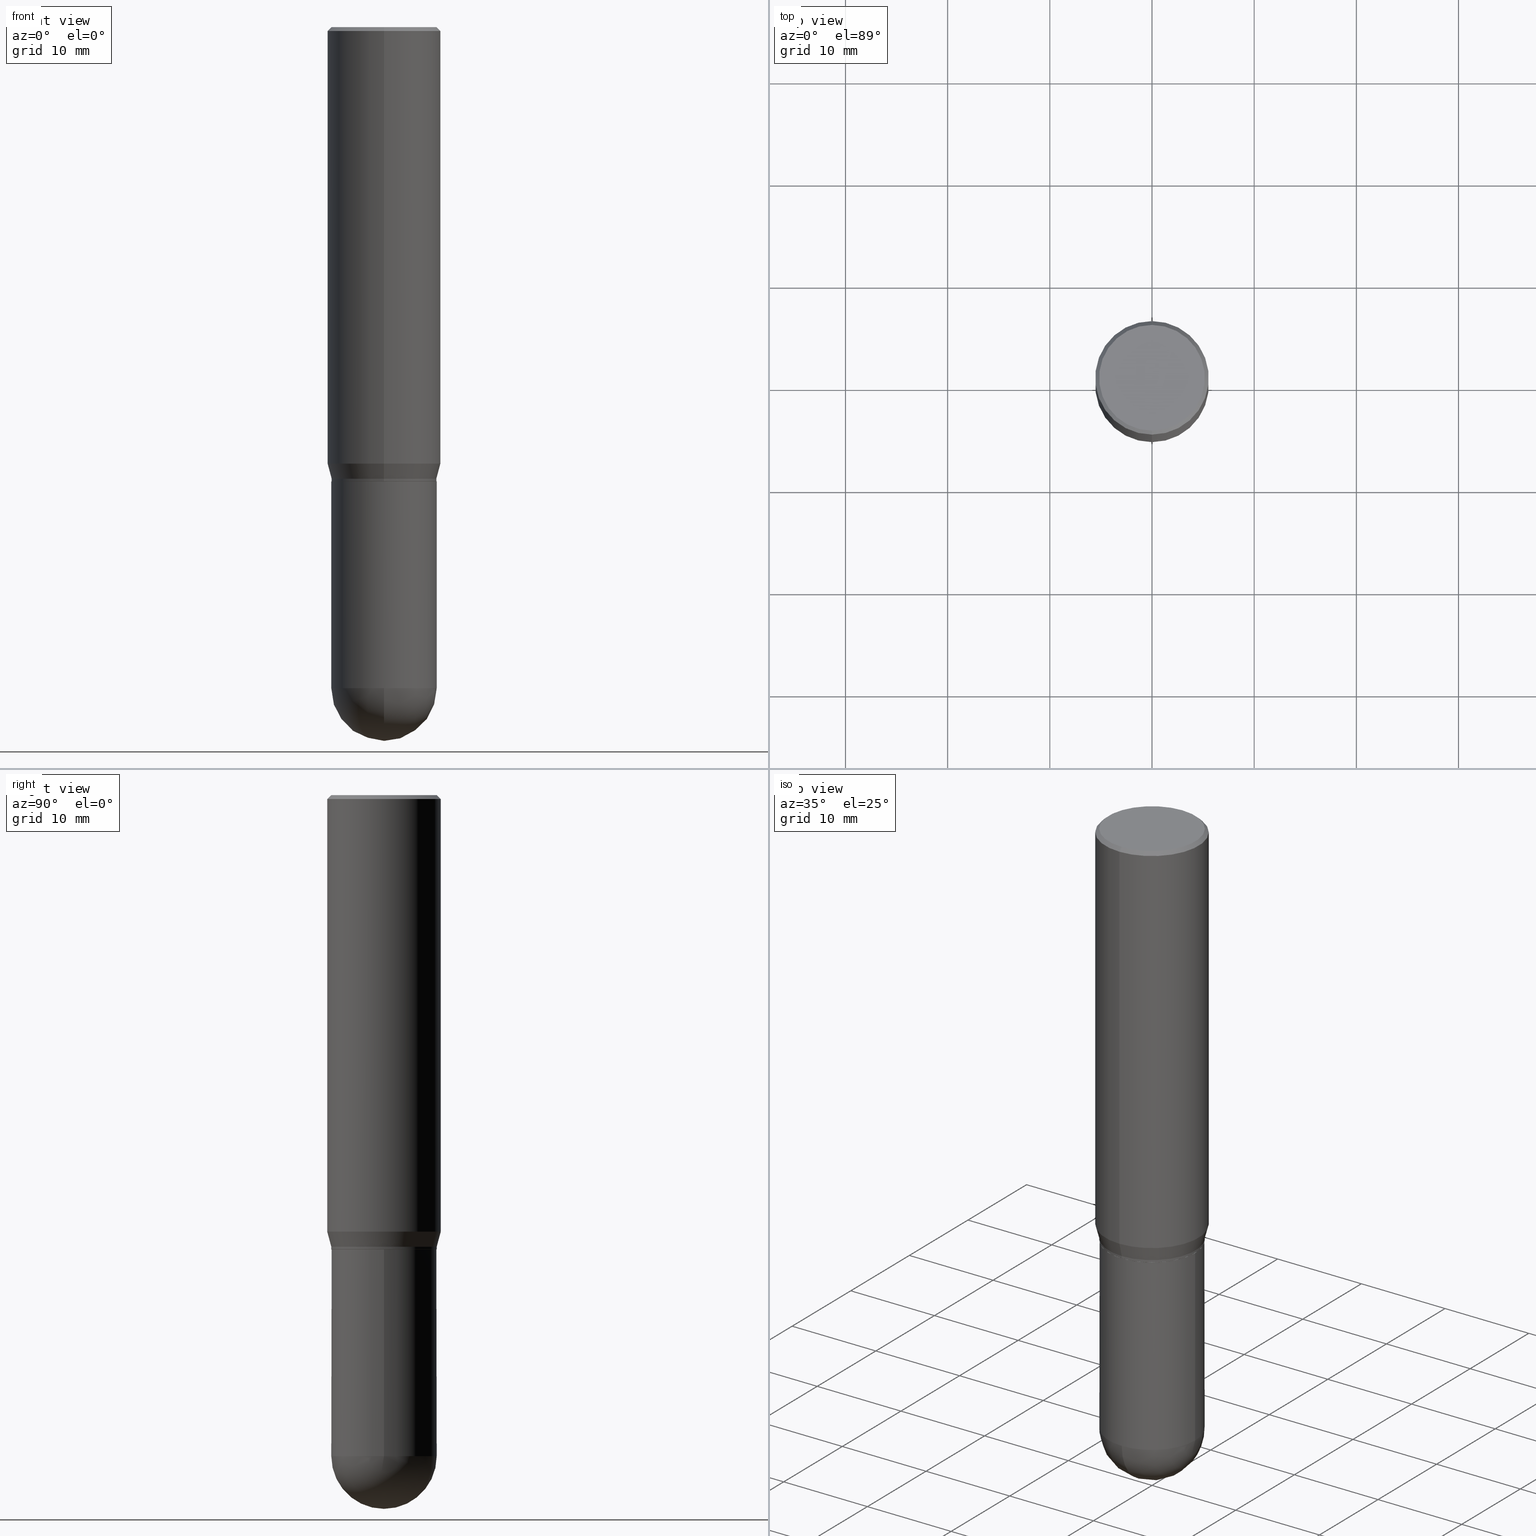
[diagram: canonical four-view strip — front | top / right | iso, engineering-drawing reading convention]
A machine part, canonical four-view strip (front | top / right | iso — engineering-drawing reading convention). The complete STEP part file that produces these views, byte-faithful:
ISO-10303-21;
HEADER;
FILE_DESCRIPTION (( 'STEP AP203' ),
    '1' );
FILE_NAME ('30152.STEP',
    '2024-03-08T15:19:34',
    ( '' ),
    ( '' ),
    'SwSTEP 2.0',
    'SolidWorks 2023',
    '' );
FILE_SCHEMA (( 'CONFIG_CONTROL_DESIGN' ));
ENDSEC;

DATA;
#1 = DIRECTION ( 'NONE',  ( -2.445434585093504913E-29, 3.491530345394105536E-15, 1.000000000000000000 ) ) ;
#2 = DIRECTION ( 'NONE',  ( -6.982962677686265133E-15, -1.000000000000000000, 3.746534391310989557E-15 ) ) ;
#3 = CARTESIAN_POINT ( 'NONE',  ( 0.000000000000000000, 0.000000000000000000, 0.000000000000000000 ) ) ;
#4 = ADVANCED_FACE ( 'NONE', ( #391 ), #68, .F. ) ;
#5 = LINE ( 'NONE', #230, #276 ) ;
#6 = ORIENTED_EDGE ( 'NONE', *, *, #330, .T. ) ;
#7 = EDGE_CURVE ( 'NONE', #196, #449, #484, .T. ) ;
#8 = MANIFOLD_SOLID_BREP ( 'Body-Move/Copy2[1]', #362 ) ;
#9 = ORIENTED_EDGE ( 'NONE', *, *, #167, .F. ) ;
#10 = PERSON_AND_ORGANIZATION_ROLE ( 'creator' ) ;
#11 = CIRCLE ( 'NONE', #315, 0.2031000000000000583 ) ;
#12 = APPROVAL_STATUS ( 'not_yet_approved' ) ;
#13 = ORIENTED_EDGE ( 'NONE', *, *, #423, .F. ) ;
#14 = APPROVAL_DATE_TIME ( #46, #122 ) ;
#15 = ORIENTED_EDGE ( 'NONE', *, *, #454, .F. ) ;
#16 = AXIS2_PLACEMENT_3D ( 'NONE', #419, #59, #169 ) ;
#17 = DIRECTION ( 'NONE',  ( 1.000000000000000000, -6.982962677686262766E-15, 0.000000000000000000 ) ) ;
#18 = EDGE_LOOP ( 'NONE', ( #442, #325 ) ) ;
#19 = ORIENTED_EDGE ( 'NONE', *, *, #287, .F. ) ;
#20 = CYLINDRICAL_SURFACE ( 'NONE', #404, 0.2187500000000000000 ) ;
#21 = FACE_OUTER_BOUND ( 'NONE', #87, .T. ) ;
#22 = CARTESIAN_POINT ( 'NONE',  ( 6.228364502472924746E-29, -8.892453821899607499E-15, -2.546899999999999942 ) ) ;
#23 = CIRCLE ( 'NONE', #270, 0.2030999999999999472 ) ;
#24 = CALENDAR_DATE ( 2024, 8, 3 ) ;
#25 = DIRECTION ( 'NONE',  ( 1.000000000000000000, -6.982962677686262766E-15, 0.000000000000000000 ) ) ;
#26 = DIRECTION ( 'NONE',  ( -6.982962677686265133E-15, -1.000000000000000000, 3.491530345394105141E-15 ) ) ;
#27 = DIRECTION ( 'NONE',  ( 2.445434585093504913E-29, -3.491530345394105536E-15, -1.000000000000000000 ) ) ;
#28 = EDGE_CURVE ( 'NONE', #247, #130, #217, .T. ) ;
#29 = FACE_OUTER_BOUND ( 'NONE', #61, .T. ) ;
#30 = FACE_OUTER_BOUND ( 'NONE', #79, .T. ) ;
#31 = SECURITY_CLASSIFICATION ( '', '', #95 ) ;
#32 = DIRECTION ( 'NONE',  ( 6.982962677686265922E-15, 1.000000000000000000, -3.491530345394105536E-15 ) ) ;
#33 = PRODUCT ( '30152', '30152', '', ( #285 ) ) ;
#34 = DIRECTION ( 'NONE',  ( -2.445434585093504913E-29, 3.491530345394105536E-15, 1.000000000000000000 ) ) ;
#35 = CC_DESIGN_PERSON_AND_ORGANIZATION_ASSIGNMENT ( #86, #10, ( #211 ) ) ;
#36 = CARTESIAN_POINT ( 'NONE',  ( 3.668151877640314350E-31, -5.237295518091239778E-17, -0.01500000000000023190 ) ) ;
#37 = FACE_OUTER_BOUND ( 'NONE', #380, .T. ) ;
#38 = VECTOR ( 'NONE', #476, 39.37007874015748143 ) ;
#39 = CIRCLE ( 'NONE', #53, 0.2187500000000000000 ) ;
#40 = CALENDAR_DATE ( 2024, 8, 3 ) ;
#41 = EDGE_LOOP ( 'NONE', ( #232, #134, #368, #370, #19 ) ) ;
#42 = ORIENTED_EDGE ( 'NONE', *, *, #205, .F. ) ;
#43 = CIRCLE ( 'NONE', #353, 0.2030999999999999472 ) ;
#44 = CIRCLE ( 'NONE', #345, 0.2026000000000000023 ) ;
#45 =( GEOMETRIC_REPRESENTATION_CONTEXT ( 3 ) GLOBAL_UNCERTAINTY_ASSIGNED_CONTEXT ( ( #117 ) ) GLOBAL_UNIT_ASSIGNED_CONTEXT ( ( #243, #487, #398 ) ) REPRESENTATION_CONTEXT ( 'NONE', 'WORKASPACE' ) );
#46 = DATE_AND_TIME ( #279, #417 ) ;
#47 = CC_DESIGN_PERSON_AND_ORGANIZATION_ASSIGNMENT ( #48, #458, ( #184 ) ) ;
#48 = PERSON_AND_ORGANIZATION ( #439, #303 ) ;
#49 = VERTEX_POINT ( 'NONE', #236 ) ;
#50 = DIRECTION ( 'NONE',  ( -2.445434585093504633E-29, 3.491530345394105536E-15, 1.000000000000000000 ) ) ;
#51 = AXIS2_PLACEMENT_3D ( 'NONE', #327, #286, #292 ) ;
#52 = AXIS2_PLACEMENT_3D ( 'NONE', #272, #65, #66 ) ;
#53 = AXIS2_PLACEMENT_3D ( 'NONE', #231, #128, #448 ) ;
#54 = DIRECTION ( 'NONE',  ( -2.445468806185136597E-29, 3.491481338843145583E-15, 1.000000000000000000 ) ) ;
#55 = ORIENTED_EDGE ( 'NONE', *, *, #278, .F. ) ;
#56 = VERTEX_POINT ( 'NONE', #324 ) ;
#57 = ADVANCED_FACE ( 'NONE', ( #333 ), #396, .T. ) ;
#58 = EDGE_CURVE ( 'NONE', #478, #347, #43, .T. ) ;
#59 = DIRECTION ( 'NONE',  ( -2.445434585093504913E-29, 3.491530345394105536E-15, 1.000000000000000000 ) ) ;
#60 = FACE_OUTER_BOUND ( 'NONE', #248, .T. ) ;
#61 = EDGE_LOOP ( 'NONE', ( #334, #498, #157, #85 ) ) ;
#62 = APPLICATION_CONTEXT ( 'configuration controlled 3d designs of mechanical parts and assemblies' ) ;
#63 = LOCAL_TIME ( 10, 19, 34.00000000000000000, #119 ) ;
#64 = CARTESIAN_POINT ( 'NONE',  ( 0.000000000000000000, 0.000000000000000000, 0.000000000000000000 ) ) ;
#65 = DIRECTION ( 'NONE',  ( -2.445434585093504913E-29, 3.491530345394105536E-15, 1.000000000000000000 ) ) ;
#66 = DIRECTION ( 'NONE',  ( -6.982962677686266711E-15, -1.000000000000000000, 4.035225987687243463E-15 ) ) ;
#67 = ADVANCED_FACE ( 'NONE', ( #21 ), #424, .T. ) ;
#68 = PLANE ( 'NONE',  #268 ) ;
#69 = VECTOR ( 'NONE', #271, 39.37007874015748854 ) ;
#70 = LINE ( 'NONE', #470, #511 ) ;
#71 = CARTESIAN_POINT ( 'NONE',  ( -1.414748238499194972E-15, -0.2026000000000061363, -1.749999999999999112 ) ) ;
#72 = EDGE_CURVE ( 'NONE', #298, #447, #126, .T. ) ;
#73 = CARTESIAN_POINT ( 'NONE',  ( -1.418239719838037782E-15, -0.2031000000000060257, -1.739999999999999103 ) ) ;
#74 = EDGE_LOOP ( 'NONE', ( #365, #340, #486, #414 ) ) ;
#75 = CARTESIAN_POINT ( 'NONE',  ( -1.414748238499194972E-15, -0.2026000000000061363, -1.749999999999999112 ) ) ;
#76 = DATE_AND_TIME ( #323, #309 ) ;
#77 = VECTOR ( 'NONE', #223, 39.37007874015748143 ) ;
#78 = VERTEX_POINT ( 'NONE', #162 ) ;
#79 = EDGE_LOOP ( 'NONE', ( #244, #197 ) ) ;
#80 = APPLICATION_PROTOCOL_DEFINITION ( 'international standard', 'config_control_design', 1994, #393 ) ;
#81 = DIRECTION ( 'NONE',  ( -2.445468806185136597E-29, 3.491481338843145583E-15, 1.000000000000000000 ) ) ;
#82 = EDGE_LOOP ( 'NONE', ( #289, #495 ) ) ;
#83 = APPLICATION_PROTOCOL_DEFINITION ( 'international standard', 'config_control_design', 1994, #62 ) ;
#84 = CIRCLE ( 'NONE', #16, 0.2030999999999999472 ) ;
#85 = ORIENTED_EDGE ( 'NONE', *, *, #235, .F. ) ;
#86 = PERSON_AND_ORGANIZATION ( #439, #303 ) ;
#87 = EDGE_LOOP ( 'NONE', ( #92, #411, #477, #294 ) ) ;
#88 = ORIENTED_EDGE ( 'NONE', *, *, #205, .T. ) ;
#89 = ORIENTED_EDGE ( 'NONE', *, *, #140, .F. ) ;
#90 = DATE_TIME_ROLE ( 'classification_date' ) ;
#91 = DIRECTION ( 'NONE',  ( -2.445468806185136597E-29, 3.491481338843145583E-15, 1.000000000000000000 ) ) ;
#92 = ORIENTED_EDGE ( 'NONE', *, *, #203, .T. ) ;
#93 = DIRECTION ( 'NONE',  ( -6.982962677686266711E-15, -1.000000000000000000, 4.035225987687243463E-15 ) ) ;
#94 = CARTESIAN_POINT ( 'NONE',  ( 4.255056178062698487E-29, -6.075262800985744342E-15, -1.739999999999999991 ) ) ;
#95 = SECURITY_CLASSIFICATION_LEVEL ( 'unclassified' ) ;
#96 = DIRECTION ( 'NONE',  ( 2.438088387897960049E-29, -3.491481338843145188E-15, -1.000000000000000000 ) ) ;
#97 = ORIENTED_EDGE ( 'NONE', *, *, #263, .T. ) ;
#98 = EDGE_CURVE ( 'NONE', #481, #298, #267, .T. ) ;
#99 = CARTESIAN_POINT ( 'NONE',  ( -1.418239719838036796E-15, -0.2031000000000059424, -1.749499999999999167 ) ) ;
#100 = DATE_AND_TIME ( #455, #190 ) ;
#101 = DIRECTION ( 'NONE',  ( -2.445468806185136597E-29, 3.491481338843145583E-15, 1.000000000000000000 ) ) ;
#102 = APPROVAL ( #207, 'UNSPECIFIED' ) ;
#103 = CIRCLE ( 'NONE', #146, 0.2037499999999999867 ) ;
#104 = CC_DESIGN_APPROVAL ( #102, ( #31 ) ) ;
#105 = FACE_OUTER_BOUND ( 'NONE', #41, .T. ) ;
#106 = FACE_OUTER_BOUND ( 'NONE', #406, .T. ) ;
#107 = DIRECTION ( 'NONE',  ( 6.982962677686265133E-15, 1.000000000000000000, -3.492862791899308071E-15 ) ) ;
#108 = CARTESIAN_POINT ( 'NONE',  ( 1.422778645578576487E-15, 0.2037499999999999867, -8.279976413721720471E-16 ) ) ;
#109 = AXIS2_PLACEMENT_3D ( 'NONE', #304, #96, #208 ) ;
#110 = LINE ( 'NONE', #265, #38 ) ;
#111 = CARTESIAN_POINT ( 'NONE',  ( 6.228364502472924746E-29, -8.892453821899607499E-15, -2.546899999999999942 ) ) ;
#112 = SPHERICAL_SURFACE ( 'NONE', #222, 0.2030999999999999472 ) ;
#113 = DIRECTION ( 'NONE',  ( -2.445434585093504913E-29, 3.491530345394105536E-15, 1.000000000000000000 ) ) ;
#114 = ORIENTED_EDGE ( 'NONE', *, *, #332, .F. ) ;
#115 = CIRCLE ( 'NONE', #416, 0.2026000000000000023 ) ;
#116 = CONICAL_SURFACE ( 'NONE', #460, 0.2030999999999999472, 0.2617993877991492413 ) ;
#117 = UNCERTAINTY_MEASURE_WITH_UNIT (LENGTH_MEASURE( 1.000000000000000082E-05 ), #243, 'distance_accuracy_value', 'NONE');
#118 = ORIENTED_EDGE ( 'NONE', *, *, #266, .T. ) ;
#119 = COORDINATED_UNIVERSAL_TIME_OFFSET ( 5, 0, .BEHIND. ) ;
#120 = ORIENTED_EDGE ( 'NONE', *, *, #225, .F. ) ;
#121 = CARTESIAN_POINT ( 'NONE',  ( 1.498712265402032742E-15, 0.2030999999999938688, -1.740000000000000879 ) ) ;
#122 = APPROVAL ( #372, 'UNSPECIFIED' ) ;
#123 = ORIENTED_EDGE ( 'NONE', *, *, #235, .T. ) ;
#124 = ORIENTED_EDGE ( 'NONE', *, *, #312, .F. ) ;
#125 = APPROVAL_DATE_TIME ( #164, #464 ) ;
#126 = LINE ( 'NONE', #488, #249 ) ;
#127 = AXIS2_PLACEMENT_3D ( 'NONE', #165, #258, #379 ) ;
#128 = DIRECTION ( 'NONE',  ( -2.445434585093504913E-29, 3.491530345394105536E-15, 1.000000000000000000 ) ) ;
#129 = ORIENTED_EDGE ( 'NONE', *, *, #366, .T. ) ;
#130 = VERTEX_POINT ( 'NONE', #121 ) ;
#131 = ADVANCED_BREP_SHAPE_REPRESENTATION ( '30152', ( #8, #338, #337 ), #45 ) ;
#132 = CARTESIAN_POINT ( 'NONE',  ( 0.2031000000000000583, -8.919512802275635677E-15, -2.546899999999999942 ) ) ;
#133 = EDGE_LOOP ( 'NONE', ( #277, #209, #139, #429 ) ) ;
#134 = ORIENTED_EDGE ( 'NONE', *, *, #140, .T. ) ;
#135 = DIRECTION ( 'NONE',  ( -2.445434585093504913E-29, 3.491530345394105536E-15, 1.000000000000000000 ) ) ;
#136 = AXIS2_PLACEMENT_3D ( 'NONE', #227, #510, #154 ) ;
#137 = AXIS2_PLACEMENT_3D ( 'NONE', #494, #479, #369 ) ;
#138 = FACE_OUTER_BOUND ( 'NONE', #240, .T. ) ;
#139 = ORIENTED_EDGE ( 'NONE', *, *, #203, .F. ) ;
#140 = EDGE_CURVE ( 'NONE', #56, #493, #437, .T. ) ;
#141 = DATE_AND_TIME ( #24, #322 ) ;
#142 = CARTESIAN_POINT ( 'NONE',  ( 4.279570410823988484E-29, -6.110092342975504671E-15, -1.750000000000000000 ) ) ;
#143 = CC_DESIGN_PERSON_AND_ORGANIZATION_ASSIGNMENT ( #281, #290, ( #184 ) ) ;
#144 = CARTESIAN_POINT ( 'NONE',  ( 4.279510523913633107E-29, -6.110178104439684490E-15, -1.750000000000000000 ) ) ;
#145 = CLOSED_SHELL ( 'NONE', ( #382, #246, #378, #156, #67, #482, #228, #367, #4, #453, #57, #413 ) ) ;
#146 = AXIS2_PLACEMENT_3D ( 'NONE', #387, #253, #26 ) ;
#147 = CARTESIAN_POINT ( 'NONE',  ( -1.500733937012521740E-15, -0.2187500000000000555, -0.01499999999999946862 ) ) ;
#148 = CARTESIAN_POINT ( 'NONE',  ( 4.112226670313570876E-29, -5.871334401688686033E-15, -1.681593404861546848 ) ) ;
#149 = FACE_OUTER_BOUND ( 'NONE', #133, .T. ) ;
#150 = CARTESIAN_POINT ( 'NONE',  ( 0.2031000000000000028, -1.418239719838080775E-15, 9.903515031641546145E-30 ) ) ;
#151 = VECTOR ( 'NONE', #224, 39.37007874015748143 ) ;
#152 = AXIS2_PLACEMENT_3D ( 'NONE', #512, #471, #433 ) ;
#153 = CARTESIAN_POINT ( 'NONE',  ( 6.716355003342508555E-29, -9.614009970063991023E-15, -2.750000000000000000 ) ) ;
#154 = DIRECTION ( 'NONE',  ( -6.982962677686266711E-15, -1.000000000000000000, 3.491530345394105536E-15 ) ) ;
#155 = CARTESIAN_POINT ( 'NONE',  ( -1.443112296328700980E-15, -0.2031000000000088845, -2.546899999999999498 ) ) ;
#156 = ADVANCED_FACE ( 'NONE', ( #29 ), #183, .T. ) ;
#157 = ORIENTED_EDGE ( 'NONE', *, *, #491, .F. ) ;
#158 = PERSON_AND_ORGANIZATION ( #439, #303 ) ;
#159 = CIRCLE ( 'NONE', #363, 0.2030999999999999472 ) ;
#160 = EDGE_CURVE ( 'NONE', #297, #247, #180, .T. ) ;
#161 = CARTESIAN_POINT ( 'NONE',  ( -1.527523085743870054E-15, -0.2187500000000000555, -0.01499999999999946862 ) ) ;
#162 = CARTESIAN_POINT ( 'NONE',  ( -0.2031000000000000028, -6.058160786108792588E-15, -1.750000000000000000 ) ) ;
#163 = ORIENTED_EDGE ( 'NONE', *, *, #366, .F. ) ;
#164 = DATE_AND_TIME ( #40, #63 ) ;
#165 = CARTESIAN_POINT ( 'NONE',  ( 0.000000000000000000, 0.000000000000000000, 0.000000000000000000 ) ) ;
#166 = ORIENTED_EDGE ( 'NONE', *, *, #423, .T. ) ;
#167 = EDGE_CURVE ( 'NONE', #273, #49, #226, .T. ) ;
#168 = PERSON_AND_ORGANIZATION_ROLE ( 'classification_officer' ) ;
#169 = DIRECTION ( 'NONE',  ( -6.982962677686266711E-15, -1.000000000000000000, 4.035225987687243463E-15 ) ) ;
#170 = DIRECTION ( 'NONE',  ( -6.982962677686265133E-15, -1.000000000000000000, 3.491530345394105536E-15 ) ) ;
#171 = VECTOR ( 'NONE', #496, 39.37007874015748143 ) ;
#172 = AXIS2_PLACEMENT_3D ( 'NONE', #144, #135, #346 ) ;
#173 = DIRECTION ( 'NONE',  ( -1.000000000000000000, 6.982962677686266711E-15, -4.883557194083112901E-29 ) ) ;
#174 = CC_DESIGN_APPROVAL ( #122, ( #211 ) ) ;
#175 = DIRECTION ( 'NONE',  ( -2.445434585093504913E-29, 3.491530345394105536E-15, 1.000000000000000000 ) ) ;
#176 = CC_DESIGN_SECURITY_CLASSIFICATION ( #31, ( #184 ) ) ;
#177 = DIRECTION ( 'NONE',  ( -6.982962677686265922E-15, -1.000000000000000000, 4.045184590815789415E-15 ) ) ;
#178 = DIRECTION ( 'NONE',  ( -2.445434585093504913E-29, 3.491530345394105536E-15, 1.000000000000000000 ) ) ;
#179 = PLANE ( 'NONE',  #109 ) ;
#180 = LINE ( 'NONE', #296, #69 ) ;
#181 = DIRECTION ( 'NONE',  ( 1.000000000000000000, -6.982962677686262766E-15, 0.000000000000000000 ) ) ;
#182 = EDGE_CURVE ( 'NONE', #193, #297, #44, .T. ) ;
#183 = CYLINDRICAL_SURFACE ( 'NONE', #468, 0.2187500000000000000 ) ;
#184 = PRODUCT_DEFINITION_FORMATION_WITH_SPECIFIED_SOURCE ( 'ANY', '', #33, .NOT_KNOWN. ) ;
#185 = PLANE ( 'NONE',  #405 ) ;
#186 = DIRECTION ( 'NONE',  ( -4.937700262164715281E-15, -0.7071067811865691111, 0.7071067811865257013 ) ) ;
#187 = ADVANCED_FACE ( 'NONE', ( #218 ), #112, .T. ) ;
#188 = CYLINDRICAL_SURFACE ( 'NONE', #136, 0.2030999999999999472 ) ;
#189 = AXIS2_PLACEMENT_3D ( 'NONE', #36, #27, #352 ) ;
#190 = LOCAL_TIME ( 10, 19, 34.00000000000000000, #412 ) ;
#191 = DIRECTION ( 'NONE',  ( -6.982962677686266711E-15, -1.000000000000000000, 4.035225987687243463E-15 ) ) ;
#192 = CC_DESIGN_DATE_AND_TIME_ASSIGNMENT ( #100, #90, ( #31 ) ) ;
#193 = VERTEX_POINT ( 'NONE', #71 ) ;
#194 = DIRECTION ( 'NONE',  ( 0.000000000000000000, 0.000000000000000000, 1.000000000000000000 ) ) ;
#195 = VECTOR ( 'NONE', #186, 39.37007874015748854 ) ;
#196 = VERTEX_POINT ( 'NONE', #99 ) ;
#197 = ORIENTED_EDGE ( 'NONE', *, *, #266, .F. ) ;
#198 = PERSON_AND_ORGANIZATION ( #439, #303 ) ;
#199 = DIRECTION ( 'NONE',  ( 4.937700262164548831E-15, 0.7071067811865452413, -0.7071067811865497932 ) ) ;
#200 = CARTESIAN_POINT ( 'NONE',  ( 0.000000000000000000, 0.000000000000000000, 0.000000000000000000 ) ) ;
#201 = APPROVAL_ROLE ( '' ) ;
#202 = CARTESIAN_POINT ( 'NONE',  ( 6.210996075139691695E-29, -8.917326398390289827E-15, -2.546899999999999942 ) ) ;
#203 = EDGE_CURVE ( 'NONE', #449, #130, #84, .T. ) ;
#204 = EDGE_LOOP ( 'NONE', ( #213, #237, #42, #55 ) ) ;
#205 = EDGE_CURVE ( 'NONE', #273, #347, #259, .T. ) ;
#206 = AXIS2_PLACEMENT_3D ( 'NONE', #142, #54, #305 ) ;
#207 = APPROVAL_STATUS ( 'not_yet_approved' ) ;
#208 = DIRECTION ( 'NONE',  ( -1.000000000000000000, 6.982962677686265922E-15, -4.876176775795935793E-29 ) ) ;
#209 = ORIENTED_EDGE ( 'NONE', *, *, #28, .T. ) ;
#210 = CARTESIAN_POINT ( 'NONE',  ( 4.279570410823988484E-29, -6.110092342975504671E-15, -1.750000000000000000 ) ) ;
#211 = PRODUCT_DEFINITION ( 'UNKNOWN', '', #184, #485 ) ;
#212 = DIRECTION ( 'NONE',  ( 1.000000000000000000, -6.982962677686269866E-15, 0.000000000000000000 ) ) ;
#213 = ORIENTED_EDGE ( 'NONE', *, *, #263, .F. ) ;
#214 = AXIS2_PLACEMENT_3D ( 'NONE', #220, #360, #2 ) ;
#215 = CIRCLE ( 'NONE', #252, 0.2030999999999999472 ) ;
#216 = DIRECTION ( 'NONE',  ( 6.982962677686266711E-15, 1.000000000000000000, 0.000000000000000000 ) ) ;
#217 = LINE ( 'NONE', #261, #171 ) ;
#218 = FACE_OUTER_BOUND ( 'NONE', #204, .T. ) ;
#219 = CARTESIAN_POINT ( 'NONE',  ( 1.475150865661223764E-15, 0.2037499999999999867, -9.445959748702948399E-16 ) ) ;
#220 = CARTESIAN_POINT ( 'NONE',  ( 4.112226670313570876E-29, -5.871334401688686033E-15, -1.681593404861546848 ) ) ;
#221 = LINE ( 'NONE', #75, #195 ) ;
#222 = AXIS2_PLACEMENT_3D ( 'NONE', #434, #173, #504 ) ;
#223 = DIRECTION ( 'NONE',  ( -2.445468806185136877E-29, 3.491481338843145188E-15, 1.000000000000000000 ) ) ;
#224 = DIRECTION ( 'NONE',  ( -4.851104656540965064E-15, -0.7071067811865501263, -0.7071067811865449082 ) ) ;
#225 = EDGE_CURVE ( 'NONE', #49, #78, #320, .T. ) ;
#226 = LINE ( 'NONE', #150, #77 ) ;
#227 = CARTESIAN_POINT ( 'NONE',  ( 0.000000000000000000, 0.000000000000000000, 0.000000000000000000 ) ) ;
#228 = ADVANCED_FACE ( 'NONE', ( #138 ), #20, .T. ) ;
#229 = ADVANCED_FACE ( 'NONE', ( #421 ), #179, .F. ) ;
#230 = CARTESIAN_POINT ( 'NONE',  ( -1.418239719838037782E-15, -0.2031000000000060257, -1.739999999999999103 ) ) ;
#231 = CARTESIAN_POINT ( 'NONE',  ( 3.668151877640314350E-31, -5.237295518091239778E-17, -0.01500000000000023190 ) ) ;
#232 = ORIENTED_EDGE ( 'NONE', *, *, #310, .F. ) ;
#233 = EDGE_LOOP ( 'NONE', ( #377, #97, #89, #114 ) ) ;
#234 = SPHERICAL_SURFACE ( 'NONE', #137, 0.2030999999999999472 ) ;
#235 = EDGE_CURVE ( 'NONE', #318, #489, #499, .T. ) ;
#236 = CARTESIAN_POINT ( 'NONE',  ( 0.2031000000000000028, -7.528332062813585446E-15, -1.750000000000000000 ) ) ;
#237 = ORIENTED_EDGE ( 'NONE', *, *, #58, .T. ) ;
#238 = FACE_OUTER_BOUND ( 'NONE', #233, .T. ) ;
#239 = DIRECTION ( 'NONE',  ( 1.000000000000000000, -6.982962677686262766E-15, 0.000000000000000000 ) ) ;
#240 = EDGE_LOOP ( 'NONE', ( #385, #129, #123, #15 ) ) ;
#241 = DIRECTION ( 'NONE',  ( -6.982962677686265922E-15, -1.000000000000000000, 4.045184590815789415E-15 ) ) ;
#242 = ORIENTED_EDGE ( 'NONE', *, *, #262, .F. ) ;
#243 =( CONVERSION_BASED_UNIT ( 'INCH', #329 ) LENGTH_UNIT ( ) NAMED_UNIT ( #357 ) );
#244 = ORIENTED_EDGE ( 'NONE', *, *, #182, .F. ) ;
#245 = DIRECTION ( 'NONE',  ( -2.445434585093504913E-29, 3.491530345394105536E-15, 1.000000000000000000 ) ) ;
#246 = ADVANCED_FACE ( 'NONE', ( #463 ), #473, .T. ) ;
#247 = VERTEX_POINT ( 'NONE', #344 ) ;
#248 = EDGE_LOOP ( 'NONE', ( #503, #438, #120, #9, #88 ) ) ;
#249 = VECTOR ( 'NONE', #199, 39.37007874015748143 ) ;
#250 = CARTESIAN_POINT ( 'NONE',  ( -1.527523085743870449E-15, -0.2187500000000000000, 7.637722630549605613E-16 ) ) ;
#251 = ADVANCED_FACE ( 'NONE', ( #60 ), #307, .T. ) ;
#252 = AXIS2_PLACEMENT_3D ( 'NONE', #395, #472, #264 ) ;
#253 = DIRECTION ( 'NONE',  ( -2.445434585093504913E-29, 3.491530345394105536E-15, 1.000000000000000000 ) ) ;
#254 = DIRECTION ( 'NONE',  ( -2.445434585093504633E-29, 3.491530345394105536E-15, 1.000000000000000000 ) ) ;
#255 = ORIENTED_EDGE ( 'NONE', *, *, #491, .T. ) ;
#256 = DIRECTION ( 'NONE',  ( 1.000000000000000000, -6.982962677686265922E-15, 4.883557194083112340E-29 ) ) ;
#257 = COORDINATED_UNIVERSAL_TIME_OFFSET ( 5, 0, .BEHIND. ) ;
#258 = DIRECTION ( 'NONE',  ( -2.445468806185136597E-29, 3.491481338843145583E-15, 1.000000000000000000 ) ) ;
#259 = CIRCLE ( 'NONE', #431, 0.2031000000000000583 ) ;
#260 = CARTESIAN_POINT ( 'NONE',  ( -1.527523085743829428E-15, -0.2187500000000058287, -1.681593404861545960 ) ) ;
#261 = CARTESIAN_POINT ( 'NONE',  ( 1.443112296328762905E-15, 0.2030999999999999472, -7.091298131495426280E-16 ) ) ;
#262 = EDGE_CURVE ( 'NONE', #130, #449, #23, .T. ) ;
#263 = EDGE_CURVE ( 'NONE', #478, #493, #159, .T. ) ;
#264 = DIRECTION ( 'NONE',  ( -6.982962677686266711E-15, -1.000000000000000000, 4.035225987687243463E-15 ) ) ;
#265 = CARTESIAN_POINT ( 'NONE',  ( 1.554312234475218762E-15, 0.2187500000000000000, -7.637722630549605613E-16 ) ) ;
#266 = EDGE_CURVE ( 'NONE', #297, #193, #115, .T. ) ;
#267 = CIRCLE ( 'NONE', #51, 0.2037499999999999867 ) ;
#268 = AXIS2_PLACEMENT_3D ( 'NONE', #108, #269, #32 ) ;
#269 = DIRECTION ( 'NONE',  ( 2.445434585093504633E-29, -3.491530345394105536E-15, -1.000000000000000000 ) ) ;
#270 = AXIS2_PLACEMENT_3D ( 'NONE', #351, #467, #93 ) ;
#271 = DIRECTION ( 'NONE',  ( 5.024295867788231995E-15, 0.7071067811865739960, 0.7071067811865208164 ) ) ;
#272 = CARTESIAN_POINT ( 'NONE',  ( 4.278287806621086797E-29, -6.108432339266988193E-15, -1.749500000000000055 ) ) ;
#273 = VERTEX_POINT ( 'NONE', #132 ) ;
#274 = CARTESIAN_POINT ( 'NONE',  ( 4.255056178062698487E-29, -6.075262800985744342E-15, -1.739999999999999991 ) ) ;
#275 = DIRECTION ( 'NONE',  ( 1.839019923739593216E-15, 0.2588190451025239591, 0.9659258262890674240 ) ) ;
#276 = VECTOR ( 'NONE', #392, 39.37007874015748854 ) ;
#277 = ORIENTED_EDGE ( 'NONE', *, *, #358, .T. ) ;
#278 = EDGE_CURVE ( 'NONE', #493, #273, #11, .T. ) ;
#279 = CALENDAR_DATE ( 2024, 8, 3 ) ;
#280 = EDGE_LOOP ( 'NONE', ( #328, #457, #409, #163 ) ) ;
#281 = PERSON_AND_ORGANIZATION ( #439, #303 ) ;
#282 = CARTESIAN_POINT ( 'NONE',  ( 6.228364502472924746E-29, -8.892453821899607499E-15, -2.546899999999999942 ) ) ;
#283 = CARTESIAN_POINT ( 'NONE',  ( 4.279510523913633107E-29, -6.110178104439684490E-15, -1.750000000000000000 ) ) ;
#284 = ORIENTED_EDGE ( 'NONE', *, *, #454, .T. ) ;
#285 = MECHANICAL_CONTEXT ( 'NONE', #393, 'mechanical' ) ;
#286 = DIRECTION ( 'NONE',  ( -2.445434585093504913E-29, 3.491530345394105536E-15, 1.000000000000000000 ) ) ;
#287 = EDGE_CURVE ( 'NONE', #78, #49, #348, .T. ) ;
#288 = ADVANCED_FACE ( 'NONE', ( #105 ), #456, .T. ) ;
#289 = ORIENTED_EDGE ( 'NONE', *, *, #312, .T. ) ;
#290 = PERSON_AND_ORGANIZATION_ROLE ( 'creator' ) ;
#291 = CIRCLE ( 'NONE', #446, 0.2187500000000000000 ) ;
#292 = DIRECTION ( 'NONE',  ( -6.982962677686265133E-15, -1.000000000000000000, 3.491530345394105141E-15 ) ) ;
#293 = APPROVAL_PERSON_ORGANIZATION ( #198, #464, #410 ) ;
#294 = ORIENTED_EDGE ( 'NONE', *, *, #342, .F. ) ;
#295 = CC_DESIGN_PERSON_AND_ORGANIZATION_ASSIGNMENT ( #466, #168, ( #31 ) ) ;
#296 = CARTESIAN_POINT ( 'NONE',  ( 1.439559582650005591E-15, 0.2025999999999938961, -1.750000000000000666 ) ) ;
#297 = VERTEX_POINT ( 'NONE', #426 ) ;
#298 = VERTEX_POINT ( 'NONE', #219 ) ;
#299 = ORIENTED_EDGE ( 'NONE', *, *, #72, .T. ) ;
#300 = DIRECTION ( 'NONE',  ( -2.445468806185136597E-29, 3.491481338843145583E-15, 1.000000000000000000 ) ) ;
#301 = CARTESIAN_POINT ( 'NONE',  ( 0.000000000000000000, 0.000000000000000000, 0.000000000000000000 ) ) ;
#302 = CONICAL_SURFACE ( 'NONE', #189, 0.2187500000000000000, 0.7853981633974485010 ) ;
#303 = ORGANIZATION ( 'UNSPECIFIED', 'UNSPECIFIED', '' ) ;
#304 = CARTESIAN_POINT ( 'NONE',  ( 1.418239719838123571E-15, 0.2030999999999938965, -1.750000000000000666 ) ) ;
#305 = DIRECTION ( 'NONE',  ( 1.000000000000000000, -6.982962677686269866E-15, 0.000000000000000000 ) ) ;
#306 = DIRECTION ( 'NONE',  ( -6.982962677686265133E-15, -1.000000000000000000, 3.491530345394105536E-15 ) ) ;
#307 = CYLINDRICAL_SURFACE ( 'NONE', #373, 0.2031000000000000028 ) ;
#308 = VECTOR ( 'NONE', #254, 39.37007874015748143 ) ;
#309 = LOCAL_TIME ( 10, 19, 34.00000000000000000, #436 ) ;
#310 = EDGE_CURVE ( 'NONE', #56, #78, #461, .T. ) ;
#311 = DIRECTION ( 'NONE',  ( -2.445468806185136597E-29, 3.491481338843145583E-15, 1.000000000000000000 ) ) ;
#312 = EDGE_CURVE ( 'NONE', #298, #481, #103, .T. ) ;
#313 = FACE_OUTER_BOUND ( 'NONE', #331, .T. ) ;
#314 = DIRECTION ( 'NONE',  ( -6.982962677686266711E-15, -1.000000000000000000, 3.491530345394105536E-15 ) ) ;
#315 = AXIS2_PLACEMENT_3D ( 'NONE', #506, #300, #17 ) ;
#316 = FACE_OUTER_BOUND ( 'NONE', #280, .T. ) ;
#317 = DIRECTION ( 'NONE',  ( 2.445434585093504913E-29, -3.491530345394105536E-15, -1.000000000000000000 ) ) ;
#318 = VERTEX_POINT ( 'NONE', #260 ) ;
#319 = DIRECTION ( 'NONE',  ( 1.000000000000000000, 0.000000000000000000, 0.000000000000000000 ) ) ;
#320 = CIRCLE ( 'NONE', #354, 0.2031000000000000028 ) ;
#321 = VERTEX_POINT ( 'NONE', #427 ) ;
#322 = LOCAL_TIME ( 10, 19, 34.00000000000000000, #257 ) ;
#323 = CALENDAR_DATE ( 2024, 8, 3 ) ;
#324 = CARTESIAN_POINT ( 'NONE',  ( -0.2031000000000000583, -6.058160786108791010E-15, -2.546899999999999942 ) ) ;
#325 = ORIENTED_EDGE ( 'NONE', *, *, #287, .T. ) ;
#326 =( LENGTH_UNIT ( ) NAMED_UNIT ( * ) SI_UNIT ( $, .METRE. ) );
#327 = CARTESIAN_POINT ( 'NONE',  ( 5.702671946011534855E-45, -8.142132392621577057E-31, -2.331966669962461772E-16 ) ) ;
#328 = ORIENTED_EDGE ( 'NONE', *, *, #401, .F. ) ;
#329 = LENGTH_MEASURE_WITH_UNIT ( LENGTH_MEASURE( 0.02539999999999999897 ), #326 );
#330 = EDGE_CURVE ( 'NONE', #481, #489, #339, .T. ) ;
#331 = EDGE_LOOP ( 'NONE', ( #400, #166, #376, #242 ) ) ;
#332 = EDGE_CURVE ( 'NONE', #347, #56, #397, .T. ) ;
#333 = FACE_OUTER_BOUND ( 'NONE', #402, .T. ) ;
#334 = ORIENTED_EDGE ( 'NONE', *, *, #390, .T. ) ;
#335 = APPROVAL_ROLE ( '' ) ;
#336 = AXIS2_PLACEMENT_3D ( 'NONE', #389, #317, #107 ) ;
#337 = AXIS2_PLACEMENT_3D ( 'NONE', #200, #194, #319 ) ;
#338 = MANIFOLD_SOLID_BREP ( 'Body-Move/Copy2[2]', #145 ) ;
#339 = LINE ( 'NONE', #147, #151 ) ;
#340 = ORIENTED_EDGE ( 'NONE', *, *, #160, .T. ) ;
#341 = CARTESIAN_POINT ( 'NONE',  ( 6.210996075139691695E-29, -8.917326398390289827E-15, -2.546899999999999942 ) ) ;
#342 = EDGE_CURVE ( 'NONE', #449, #318, #5, .T. ) ;
#343 = APPROVAL_DATE_TIME ( #141, #102 ) ;
#344 = CARTESIAN_POINT ( 'NONE',  ( 1.443112296328806293E-15, 0.2030999999999939243, -1.749500000000000721 ) ) ;
#345 = AXIS2_PLACEMENT_3D ( 'NONE', #359, #1, #177 ) ;
#346 = DIRECTION ( 'NONE',  ( -6.982962677686265922E-15, -1.000000000000000000, 4.045184590815789415E-15 ) ) ;
#347 = VERTEX_POINT ( 'NONE', #364 ) ;
#348 = CIRCLE ( 'NONE', #206, 0.2031000000000000028 ) ;
#349 = CIRCLE ( 'NONE', #152, 0.2187500000000000000 ) ;
#350 = DIRECTION ( 'NONE',  ( -1.000000000000000000, 7.105427357601001070E-15, -4.926315508542082329E-29 ) ) ;
#351 = CARTESIAN_POINT ( 'NONE',  ( 4.255056178062698487E-29, -6.075262800985744342E-15, -1.739999999999999991 ) ) ;
#352 = DIRECTION ( 'NONE',  ( 6.982962677686265133E-15, 1.000000000000000000, -3.492862791899308071E-15 ) ) ;
#353 = AXIS2_PLACEMENT_3D ( 'NONE', #341, #256, #216 ) ;
#354 = AXIS2_PLACEMENT_3D ( 'NONE', #210, #101, #212 ) ;
#355 = APPROVAL_PERSON_ORGANIZATION ( #158, #122, #335 ) ;
#356 = DIRECTION ( 'NONE',  ( -2.445434585093504633E-29, 3.491530345394105536E-15, 1.000000000000000000 ) ) ;
#357 = DIMENSIONAL_EXPONENTS ( 1.000000000000000000, 0.000000000000000000, 0.000000000000000000, 0.000000000000000000, 0.000000000000000000, 0.000000000000000000, 0.000000000000000000 ) ;
#358 = EDGE_CURVE ( 'NONE', #196, #247, #445, .T. ) ;
#359 = CARTESIAN_POINT ( 'NONE',  ( 4.279510523913633107E-29, -6.110178104439684490E-15, -1.750000000000000000 ) ) ;
#360 = DIRECTION ( 'NONE',  ( -2.445434585093504913E-29, 3.491530345394105536E-15, 1.000000000000000000 ) ) ;
#361 = DIRECTION ( 'NONE',  ( -6.982962677686265922E-15, -1.000000000000000000, 3.491530345394105536E-15 ) ) ;
#362 = CLOSED_SHELL ( 'NONE', ( #251, #483, #229, #187, #288 ) ) ;
#363 = AXIS2_PLACEMENT_3D ( 'NONE', #202, #350, #384 ) ;
#364 = CARTESIAN_POINT ( 'NONE',  ( 1.418239719838142898E-15, 0.2030999999999910932, -2.546900000000000830 ) ) ;
#365 = ORIENTED_EDGE ( 'NONE', *, *, #182, .T. ) ;
#366 = EDGE_CURVE ( 'NONE', #321, #318, #480, .T. ) ;
#367 = ADVANCED_FACE ( 'NONE', ( #37 ), #459, .T. ) ;
#368 = ORIENTED_EDGE ( 'NONE', *, *, #278, .T. ) ;
#369 = DIRECTION ( 'NONE',  ( 6.982962677686266711E-15, 1.000000000000000000, -2.690150658458162309E-15 ) ) ;
#370 = ORIENTED_EDGE ( 'NONE', *, *, #167, .T. ) ;
#371 = AXIS2_PLACEMENT_3D ( 'NONE', #3, #34, #314 ) ;
#372 = APPROVAL_STATUS ( 'not_yet_approved' ) ;
#373 = AXIS2_PLACEMENT_3D ( 'NONE', #301, #91, #375 ) ;
#374 = CC_DESIGN_APPROVAL ( #464, ( #184 ) ) ;
#375 = DIRECTION ( 'NONE',  ( 1.000000000000000000, -6.982962677686266711E-15, 4.876176775795935793E-29 ) ) ;
#376 = ORIENTED_EDGE ( 'NONE', *, *, #7, .T. ) ;
#377 = ORIENTED_EDGE ( 'NONE', *, *, #58, .F. ) ;
#378 = ADVANCED_FACE ( 'NONE', ( #106 ), #302, .T. ) ;
#379 = DIRECTION ( 'NONE',  ( 1.000000000000000000, -6.982962677686266711E-15, 4.876176775795935793E-29 ) ) ;
#380 = EDGE_LOOP ( 'NONE', ( #422, #124, #299, #284 ) ) ;
#381 = DIRECTION ( 'NONE',  ( -2.445434585093504913E-29, 3.491530345394105536E-15, 1.000000000000000000 ) ) ;
#382 = ADVANCED_FACE ( 'NONE', ( #149 ), #188, .T. ) ;
#383 = EDGE_CURVE ( 'NONE', #193, #196, #221, .T. ) ;
#384 = DIRECTION ( 'NONE',  ( -7.105427357601001070E-15, -1.000000000000000000, 0.000000000000000000 ) ) ;
#385 = ORIENTED_EDGE ( 'NONE', *, *, #386, .F. ) ;
#386 = EDGE_CURVE ( 'NONE', #321, #447, #110, .T. ) ;
#387 = CARTESIAN_POINT ( 'NONE',  ( 5.702671946011534855E-45, -8.142132392621577057E-31, -2.331966669962461772E-16 ) ) ;
#388 = CYLINDRICAL_SURFACE ( 'NONE', #371, 0.2030999999999999472 ) ;
#389 = CARTESIAN_POINT ( 'NONE',  ( 3.668151877640314350E-31, -5.237295518091239778E-17, -0.01500000000000023190 ) ) ;
#390 = EDGE_CURVE ( 'NONE', #318, #321, #291, .T. ) ;
#391 = FACE_OUTER_BOUND ( 'NONE', #82, .T. ) ;
#392 = DIRECTION ( 'NONE',  ( -1.807323732225323040E-15, -0.2588190451025171868, 0.9659258262890693114 ) ) ;
#393 = APPLICATION_CONTEXT ( 'configuration controlled 3d designs of mechanical parts and assemblies' ) ;
#394 = CARTESIAN_POINT ( 'NONE',  ( -1.449280202029235538E-15, -0.2037499999999999867, 4.782026408778026828E-16 ) ) ;
#395 = CARTESIAN_POINT ( 'NONE',  ( 4.278287806621086797E-29, -6.108432339266988193E-15, -1.749500000000000055 ) ) ;
#396 = CONICAL_SURFACE ( 'NONE', #444, 0.2026000000000000023, 0.7853981633974824739 ) ;
#397 = CIRCLE ( 'NONE', #425, 0.2031000000000000583 ) ;
#398 =( NAMED_UNIT ( * ) SI_UNIT ( $, .STERADIAN. ) SOLID_ANGLE_UNIT ( ) );
#399 = PRODUCT_DEFINITION_SHAPE ( 'NONE', 'NONE',  #211 ) ;
#400 = ORIENTED_EDGE ( 'NONE', *, *, #28, .F. ) ;
#401 = EDGE_CURVE ( 'NONE', #130, #321, #70, .T. ) ;
#402 = EDGE_LOOP ( 'NONE', ( #451, #118, #441, #13 ) ) ;
#403 = PERSON_AND_ORGANIZATION ( #439, #303 ) ;
#404 = AXIS2_PLACEMENT_3D ( 'NONE', #64, #381, #170 ) ;
#405 = AXIS2_PLACEMENT_3D ( 'NONE', #474, #356, #361 ) ;
#406 = EDGE_LOOP ( 'NONE', ( #452, #6, #255, #490 ) ) ;
#407 = APPROVAL_PERSON_ORGANIZATION ( #450, #102, #201 ) ;
#408 = COORDINATED_UNIVERSAL_TIME_OFFSET ( 5, 0, .BEHIND. ) ;
#409 = ORIENTED_EDGE ( 'NONE', *, *, #342, .T. ) ;
#410 = APPROVAL_ROLE ( '' ) ;
#411 = ORIENTED_EDGE ( 'NONE', *, *, #401, .T. ) ;
#412 = COORDINATED_UNIVERSAL_TIME_OFFSET ( 5, 0, .BEHIND. ) ;
#413 = ADVANCED_FACE ( 'NONE', ( #313 ), #388, .T. ) ;
#414 = ORIENTED_EDGE ( 'NONE', *, *, #383, .F. ) ;
#415 = AXIS2_PLACEMENT_3D ( 'NONE', #94, #175, #505 ) ;
#416 = AXIS2_PLACEMENT_3D ( 'NONE', #469, #178, #418 ) ;
#417 = LOCAL_TIME ( 10, 19, 34.00000000000000000, #408 ) ;
#418 = DIRECTION ( 'NONE',  ( -6.982962677686265922E-15, -1.000000000000000000, 4.045184590815789415E-15 ) ) ;
#419 = CARTESIAN_POINT ( 'NONE',  ( 4.255056178062698487E-29, -6.075262800985744342E-15, -1.739999999999999991 ) ) ;
#420 = SHAPE_DEFINITION_REPRESENTATION ( #399, #131 ) ;
#421 = FACE_OUTER_BOUND ( 'NONE', #18, .T. ) ;
#422 = ORIENTED_EDGE ( 'NONE', *, *, #330, .F. ) ;
#423 = EDGE_CURVE ( 'NONE', #247, #196, #215, .T. ) ;
#424 = CONICAL_SURFACE ( 'NONE', #415, 0.2030999999999999472, 0.2617993877991492413 ) ;
#425 = AXIS2_PLACEMENT_3D ( 'NONE', #111, #311, #181 ) ;
#426 = CARTESIAN_POINT ( 'NONE',  ( 1.441335939489405449E-15, 0.2025999999999938961, -1.750000000000000666 ) ) ;
#427 = CARTESIAN_POINT ( 'NONE',  ( 1.554312234475260177E-15, 0.2187499999999941436, -1.681593404861547736 ) ) ;
#428 = CARTESIAN_POINT ( 'NONE',  ( 1.554312234475260375E-15, 0.2187499999999999167, -0.01500000000000099691 ) ) ;
#429 = ORIENTED_EDGE ( 'NONE', *, *, #7, .F. ) ;
#430 = DIRECTION ( 'NONE',  ( -2.445434585093504913E-29, 3.491530345394105536E-15, 1.000000000000000000 ) ) ;
#431 = AXIS2_PLACEMENT_3D ( 'NONE', #22, #507, #25 ) ;
#432 = DIRECTION ( 'NONE',  ( -6.982962677686265133E-15, -1.000000000000000000, 3.746534391310989557E-15 ) ) ;
#433 = DIRECTION ( 'NONE',  ( -6.982962677686265133E-15, -1.000000000000000000, 3.492862791899308071E-15 ) ) ;
#434 = CARTESIAN_POINT ( 'NONE',  ( 6.210996075139691695E-29, -8.917326398390289827E-15, -2.546899999999999942 ) ) ;
#435 = PRODUCT_RELATED_PRODUCT_CATEGORY ( 'detail', '', ( #33 ) ) ;
#436 = COORDINATED_UNIVERSAL_TIME_OFFSET ( 5, 0, .BEHIND. ) ;
#437 = CIRCLE ( 'NONE', #500, 0.2031000000000000583 ) ;
#438 = ORIENTED_EDGE ( 'NONE', *, *, #310, .T. ) ;
#439 = PERSON ( 'UNSPECIFIED', 'UNSPECIFIED', 'UNSPECIFIED', ('UNSPECIFIED'), ('UNSPECIFIED'), ('UNSPECIFIED') ) ;
#440 = DATE_TIME_ROLE ( 'creation_date' ) ;
#441 = ORIENTED_EDGE ( 'NONE', *, *, #383, .T. ) ;
#442 = ORIENTED_EDGE ( 'NONE', *, *, #225, .T. ) ;
#443 = PERSON_AND_ORGANIZATION_ROLE ( 'design_owner' ) ;
#444 = AXIS2_PLACEMENT_3D ( 'NONE', #283, #245, #241 ) ;
#445 = CIRCLE ( 'NONE', #52, 0.2030999999999999472 ) ;
#446 = AXIS2_PLACEMENT_3D ( 'NONE', #148, #113, #432 ) ;
#447 = VERTEX_POINT ( 'NONE', #428 ) ;
#448 = DIRECTION ( 'NONE',  ( -6.982962677686265133E-15, -1.000000000000000000, 3.492862791899308071E-15 ) ) ;
#449 = VERTEX_POINT ( 'NONE', #73 ) ;
#450 = PERSON_AND_ORGANIZATION ( #439, #303 ) ;
#451 = ORIENTED_EDGE ( 'NONE', *, *, #160, .F. ) ;
#452 = ORIENTED_EDGE ( 'NONE', *, *, #98, .F. ) ;
#453 = ADVANCED_FACE ( 'NONE', ( #30 ), #185, .F. ) ;
#454 = EDGE_CURVE ( 'NONE', #447, #489, #349, .T. ) ;
#455 = CALENDAR_DATE ( 2024, 8, 3 ) ;
#456 = CYLINDRICAL_SURFACE ( 'NONE', #127, 0.2031000000000000028 ) ;
#457 = ORIENTED_EDGE ( 'NONE', *, *, #262, .T. ) ;
#458 = PERSON_AND_ORGANIZATION_ROLE ( 'design_supplier' ) ;
#459 = CONICAL_SURFACE ( 'NONE', #336, 0.2187500000000000000, 0.7853981633974485010 ) ;
#460 = AXIS2_PLACEMENT_3D ( 'NONE', #274, #430, #191 ) ;
#461 = LINE ( 'NONE', #502, #509 ) ;
#462 = CARTESIAN_POINT ( 'NONE',  ( 0.000000000000000000, 0.000000000000000000, 0.000000000000000000 ) ) ;
#463 = FACE_OUTER_BOUND ( 'NONE', #74, .T. ) ;
#464 = APPROVAL ( #12, 'UNSPECIFIED' ) ;
#465 = DIRECTION ( 'NONE',  ( -2.445434585093504913E-29, 3.491530345394105536E-15, 1.000000000000000000 ) ) ;
#466 = PERSON_AND_ORGANIZATION ( #439, #303 ) ;
#467 = DIRECTION ( 'NONE',  ( -2.445434585093504913E-29, 3.491530345394105536E-15, 1.000000000000000000 ) ) ;
#468 = AXIS2_PLACEMENT_3D ( 'NONE', #462, #465, #306 ) ;
#469 = CARTESIAN_POINT ( 'NONE',  ( 4.279510523913633107E-29, -6.110178104439684490E-15, -1.750000000000000000 ) ) ;
#470 = CARTESIAN_POINT ( 'NONE',  ( 1.443112296328805307E-15, 0.2030999999999938688, -1.740000000000000879 ) ) ;
#471 = DIRECTION ( 'NONE',  ( -2.445434585093504913E-29, 3.491530345394105536E-15, 1.000000000000000000 ) ) ;
#472 = DIRECTION ( 'NONE',  ( -2.445434585093504913E-29, 3.491530345394105536E-15, 1.000000000000000000 ) ) ;
#473 = CONICAL_SURFACE ( 'NONE', #172, 0.2026000000000000023, 0.7853981633974824739 ) ;
#474 = CARTESIAN_POINT ( 'NONE',  ( 4.279510523913633107E-29, -6.110178104439684490E-15, -1.750000000000000000 ) ) ;
#475 = CC_DESIGN_DATE_AND_TIME_ASSIGNMENT ( #76, #440, ( #211 ) ) ;
#476 = DIRECTION ( 'NONE',  ( -2.445434585093504633E-29, 3.491530345394105536E-15, 1.000000000000000000 ) ) ;
#477 = ORIENTED_EDGE ( 'NONE', *, *, #390, .F. ) ;
#478 = VERTEX_POINT ( 'NONE', #153 ) ;
#479 = DIRECTION ( 'NONE',  ( -1.000000000000000000, 6.982962677686266711E-15, -4.883557194083112901E-29 ) ) ;
#480 = CIRCLE ( 'NONE', #214, 0.2187500000000000000 ) ;
#481 = VERTEX_POINT ( 'NONE', #394 ) ;
#482 = ADVANCED_FACE ( 'NONE', ( #316 ), #116, .T. ) ;
#483 = ADVANCED_FACE ( 'NONE', ( #238 ), #234, .T. ) ;
#484 = LINE ( 'NONE', #492, #508 ) ;
#485 = DESIGN_CONTEXT ( 'detailed design', #62, 'design' ) ;
#486 = ORIENTED_EDGE ( 'NONE', *, *, #358, .F. ) ;
#487 =( NAMED_UNIT ( * ) PLANE_ANGLE_UNIT ( ) SI_UNIT ( $, .RADIAN. ) );
#488 = CARTESIAN_POINT ( 'NONE',  ( 1.527523085743871040E-15, 0.2187499999999999167, -0.01500000000000099691 ) ) ;
#489 = VERTEX_POINT ( 'NONE', #161 ) ;
#490 = ORIENTED_EDGE ( 'NONE', *, *, #72, .F. ) ;
#491 = EDGE_CURVE ( 'NONE', #489, #447, #39, .T. ) ;
#492 = CARTESIAN_POINT ( 'NONE',  ( -1.418239719838080381E-15, -0.2030999999999999472, 7.091298131495426280E-16 ) ) ;
#493 = VERTEX_POINT ( 'NONE', #155 ) ;
#494 = CARTESIAN_POINT ( 'NONE',  ( 6.210996075139691695E-29, -8.917326398390289827E-15, -2.546899999999999942 ) ) ;
#495 = ORIENTED_EDGE ( 'NONE', *, *, #98, .T. ) ;
#496 = DIRECTION ( 'NONE',  ( -2.445434585093504633E-29, 3.491530345394105536E-15, 1.000000000000000000 ) ) ;
#497 = DIRECTION ( 'NONE',  ( -2.445468806185136877E-29, 3.491481338843145188E-15, 1.000000000000000000 ) ) ;
#498 = ORIENTED_EDGE ( 'NONE', *, *, #386, .T. ) ;
#499 = LINE ( 'NONE', #250, #308 ) ;
#500 = AXIS2_PLACEMENT_3D ( 'NONE', #282, #81, #239 ) ;
#501 = CC_DESIGN_PERSON_AND_ORGANIZATION_ASSIGNMENT ( #403, #443, ( #33 ) ) ;
#502 = CARTESIAN_POINT ( 'NONE',  ( -0.2031000000000000028, 1.443112296328763497E-15, -9.990357168307714203E-30 ) ) ;
#503 = ORIENTED_EDGE ( 'NONE', *, *, #332, .T. ) ;
#504 = DIRECTION ( 'NONE',  ( 6.982962677686266711E-15, 1.000000000000000000, -2.690150658458162309E-15 ) ) ;
#505 = DIRECTION ( 'NONE',  ( -6.982962677686266711E-15, -1.000000000000000000, 4.035225987687243463E-15 ) ) ;
#506 = CARTESIAN_POINT ( 'NONE',  ( 6.228364502472924746E-29, -8.892453821899607499E-15, -2.546899999999999942 ) ) ;
#507 = DIRECTION ( 'NONE',  ( -2.445468806185136597E-29, 3.491481338843145583E-15, 1.000000000000000000 ) ) ;
#508 = VECTOR ( 'NONE', #50, 39.37007874015748143 ) ;
#509 = VECTOR ( 'NONE', #497, 39.37007874015748143 ) ;
#510 = DIRECTION ( 'NONE',  ( -2.445434585093504913E-29, 3.491530345394105536E-15, 1.000000000000000000 ) ) ;
#511 = VECTOR ( 'NONE', #275, 39.37007874015748143 ) ;
#512 = CARTESIAN_POINT ( 'NONE',  ( 3.668151877640314350E-31, -5.237295518091239778E-17, -0.01500000000000023190 ) ) ;
ENDSEC;
END-ISO-10303-21;
